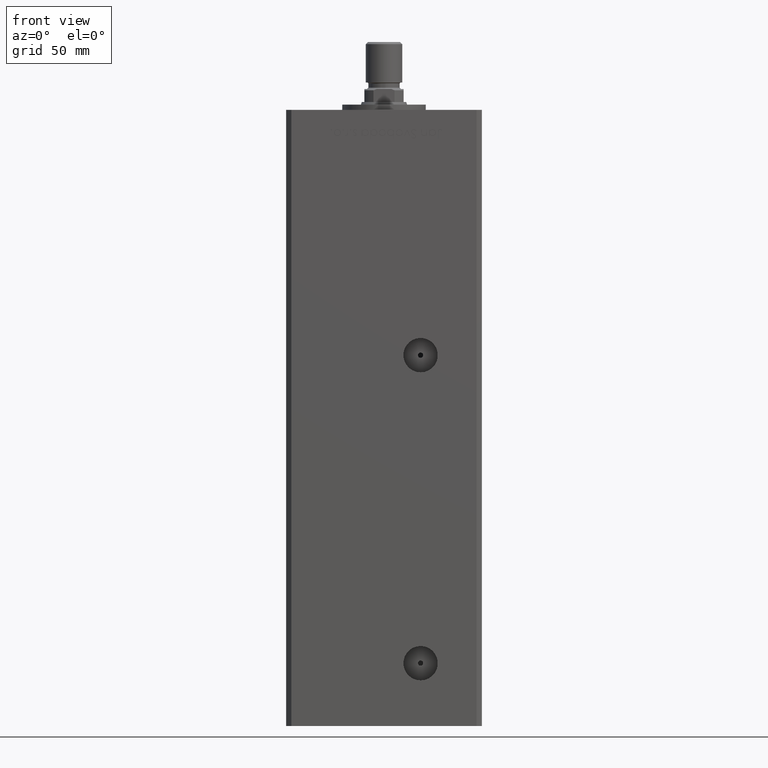
[diagram: clean part render]
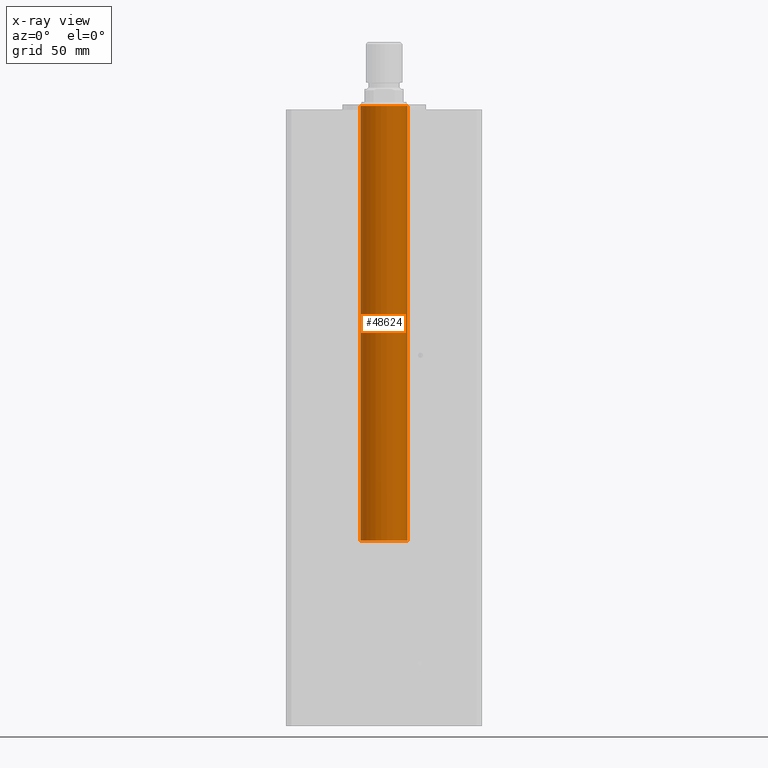
[diagram: x-ray — body ghosted, one internal face saturated and labeled with its STEP entity id]
A machine part, front view, then the same camera in x-ray: the body is ghosted and one INTERNAL B-rep face — a face not visible from any outside direction — is saturated and labeled: STEP entity #48624.
In plain terms, the highlighted cylindrical surface (edge-blend (fillet) strip) has radius 9 mm, axis along (-0, -0, 1).
Its self-contained STEP definition (entity closure, byte-faithful):
#926 = EDGE_CURVE ( 'NONE', #51313, #29868, #31633, .T. ) ;
#2402 = DIRECTION ( 'NONE',  ( 1.000000000000000000, -9.892608450469889463E-18, -0.000000000000000000 ) ) ;
#3318 = DIRECTION ( 'NONE',  ( 1.000000000000000000, -9.892608450469889463E-18, -0.000000000000000000 ) ) ;
#5863 = CARTESIAN_POINT ( 'NONE',  ( -173.0000000000000000, 9.000000000000000000, 0.000000000000000000 ) ) ;
#6388 = DIRECTION ( 'NONE',  ( 0.000000000000000000, 1.000000000000000000, 0.000000000000000000 ) ) ;
#7575 = CIRCLE ( 'NONE', #50667, 9.000000000000000000 ) ;
#9006 = CARTESIAN_POINT ( 'NONE',  ( -6.500000000000000888, -9.000000000000003553, 0.000000000000000000 ) ) ;
#9338 = AXIS2_PLACEMENT_3D ( 'NONE', #30628, #46767, #45723 ) ;
#15419 = AXIS2_PLACEMENT_3D ( 'NONE', #35039, #31591, #47729 ) ;
#17469 = ORIENTED_EDGE ( 'NONE', *, *, #52114, .T. ) ;
#23000 = VECTOR ( 'NONE', #41875, 1000.000000000000000 ) ;
#24550 = ORIENTED_EDGE ( 'NONE', *, *, #926, .F. ) ;
#25022 = EDGE_CURVE ( 'NONE', #51313, #29841, #7575, .T. ) ;
#27534 = EDGE_CURVE ( 'NONE', #29868, #30386, #44770, .T. ) ;
#29841 = VERTEX_POINT ( 'NONE', #49153 ) ;
#29868 = VERTEX_POINT ( 'NONE', #41994 ) ;
#30065 = VECTOR ( 'NONE', #3318, 1000.000000000000000 ) ;
#30386 = VERTEX_POINT ( 'NONE', #9006 ) ;
#30628 = CARTESIAN_POINT ( 'NONE',  ( -6.500000000000000888, -1.670421521048752863E-15, 0.000000000000000000 ) ) ;
#31591 = DIRECTION ( 'NONE',  ( 1.000000000000000000, -9.892608450469889463E-18, -0.000000000000000000 ) ) ;
#31633 = LINE ( 'NONE', #35346, #30065 ) ;
#33075 = ORIENTED_EDGE ( 'NONE', *, *, #25022, .T. ) ;
#33326 = ORIENTED_EDGE ( 'NONE', *, *, #27534, .F. ) ;
#35039 = CARTESIAN_POINT ( 'NONE',  ( 0.000000000000000000, -1.734723475976807094E-15, 0.000000000000000000 ) ) ;
#35301 = CYLINDRICAL_SURFACE ( 'NONE', #15419, 9.000000000000001776 ) ;
#35346 = CARTESIAN_POINT ( 'NONE',  ( 8.903347605422902212E-17, 9.000000000000000000, 0.000000000000000000 ) ) ;
#38669 = LINE ( 'NONE', #42128, #23000 ) ;
#38930 = CARTESIAN_POINT ( 'NONE',  ( -173.0000000000000000, -2.330221404551640990E-17, 0.000000000000000000 ) ) ;
#40971 = EDGE_LOOP ( 'NONE', ( #33075, #17469, #33326, #24550 ) ) ;
#41875 = DIRECTION ( 'NONE',  ( 1.000000000000000000, -9.892608450469889463E-18, -0.000000000000000000 ) ) ;
#41994 = CARTESIAN_POINT ( 'NONE',  ( -6.500000000000000888, 9.000000000000000000, 1.102182119232617911E-15 ) ) ;
#42128 = CARTESIAN_POINT ( 'NONE',  ( -8.903347605422902212E-17, -9.000000000000003553, 1.102182119232617911E-15 ) ) ;
#44770 = CIRCLE ( 'NONE', #9338, 9.000000000000001776 ) ;
#45723 = DIRECTION ( 'NONE',  ( 0.000000000000000000, 1.000000000000000000, 0.000000000000000000 ) ) ;
#46767 = DIRECTION ( 'NONE',  ( 1.000000000000000000, -9.892608450469889463E-18, -0.000000000000000000 ) ) ;
#47729 = DIRECTION ( 'NONE',  ( 9.892608450469889463E-18, 1.000000000000000000, 0.000000000000000000 ) ) ;
#48624 = ADVANCED_FACE ( 'NONE', ( #52231 ), #35301, .T. ) ;
#49153 = CARTESIAN_POINT ( 'NONE',  ( -173.0000000000000000, -9.000000000000000000, 1.102182119232617714E-15 ) ) ;
#50667 = AXIS2_PLACEMENT_3D ( 'NONE', #38930, #2402, #6388 ) ;
#51313 = VERTEX_POINT ( 'NONE', #5863 ) ;
#52114 = EDGE_CURVE ( 'NONE', #29841, #30386, #38669, .T. ) ;
#52231 = FACE_OUTER_BOUND ( 'NONE', #40971, .T. ) ;